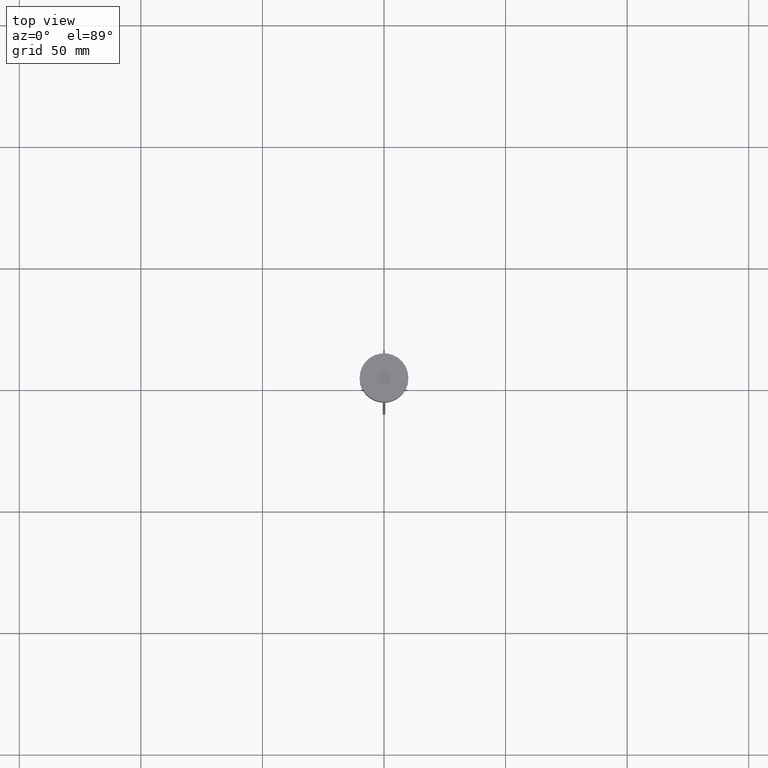
[diagram: clean part render]
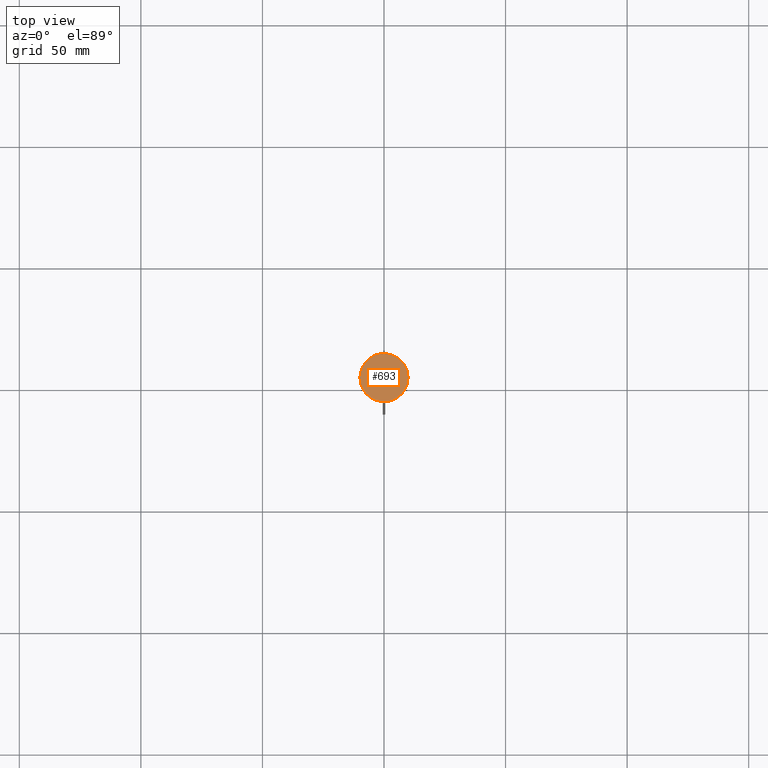
[diagram: same view with one face highlighted and labeled with its STEP entity id]
A machine part, top view. The second image highlights one B-rep face of the part: STEP entity #693.
In plain terms, the highlighted planar face has unit normal (0, -0, 1).
Its self-contained STEP definition (entity closure, byte-faithful):
#50 = CARTESIAN_POINT ( 'NONE',  ( -2.099999999999983213, 1.154700538379251018, 0.000000000000000000 ) ) ;
#54 = VERTEX_POINT ( 'NONE', #103 ) ;
#55 = LINE ( 'NONE', #1474, #2053 ) ;
#69 = EDGE_CURVE ( 'NONE', #1391, #1200, #915, .T. ) ;
#101 = CIRCLE ( 'NONE', #2051, 9.899999999999996803 ) ;
#103 = CARTESIAN_POINT ( 'NONE',  ( -9.899999999999996803, 1.218523565151615986E-15, 0.000000000000000000 ) ) ;
#118 = ORIENTED_EDGE ( 'NONE', *, *, #298, .T. ) ;
#217 = DIRECTION ( 'NONE',  ( 0.000000000000000000, 1.000000000000000000, 0.000000000000000000 ) ) ;
#271 = EDGE_LOOP ( 'NONE', ( #1664, #118 ) ) ;
#298 = EDGE_CURVE ( 'NONE', #54, #1382, #101, .T. ) ;
#357 = VERTEX_POINT ( 'NONE', #824 ) ;
#464 = DIRECTION ( 'NONE',  ( 1.000000000000000000, 0.000000000000000000, 0.000000000000000000 ) ) ;
#465 = PLANE ( 'NONE',  #997 ) ;
#494 = DIRECTION ( 'NONE',  ( 1.000000000000000000, 0.000000000000000000, 0.000000000000000000 ) ) ;
#604 = VECTOR ( 'NONE', #1249, 1000.000000000000000 ) ;
#682 = EDGE_CURVE ( 'NONE', #1930, #1391, #951, .T. ) ;
#693 = ADVANCED_FACE ( 'NONE', ( #783, #1403 ), #465, .T. ) ;
#720 = ORIENTED_EDGE ( 'NONE', *, *, #764, .T. ) ;
#744 = CIRCLE ( 'NONE', #1308, 9.899999999999996803 ) ;
#757 = CARTESIAN_POINT ( 'NONE',  ( 2.049999999999991385, 1.241303078757680645, 0.000000000000000000 ) ) ;
#762 = VERTEX_POINT ( 'NONE', #1488 ) ;
#763 = CARTESIAN_POINT ( 'NONE',  ( -0.04999999999999179406, 2.396003617136931663, 0.000000000000000000 ) ) ;
#764 = EDGE_CURVE ( 'NONE', #1328, #762, #55, .T. ) ;
#783 = FACE_OUTER_BOUND ( 'NONE', #271, .T. ) ;
#824 = CARTESIAN_POINT ( 'NONE',  ( 2.099999999999983213, -1.212435565298204398, 0.000000000000000000 ) ) ;
#872 = VECTOR ( 'NONE', #1044, 1000.000000000000000 ) ;
#915 = LINE ( 'NONE', #757, #1304 ) ;
#927 = DIRECTION ( 'NONE',  ( -0.000000000000000000, -0.000000000000000000, 1.000000000000000000 ) ) ;
#951 = LINE ( 'NONE', #763, #604 ) ;
#997 = AXIS2_PLACEMENT_3D ( 'NONE', #1258, #2048, #1888 ) ;
#998 = EDGE_CURVE ( 'NONE', #1200, #357, #1854, .T. ) ;
#1012 = CARTESIAN_POINT ( 'NONE',  ( 9.899999999999996803, 0.000000000000000000, 0.000000000000000000 ) ) ;
#1035 = EDGE_CURVE ( 'NONE', #1382, #54, #744, .T. ) ;
#1043 = ORIENTED_EDGE ( 'NONE', *, *, #1484, .T. ) ;
#1044 = DIRECTION ( 'NONE',  ( 0.000000000000000000, -1.000000000000000000, 0.000000000000000000 ) ) ;
#1074 = LINE ( 'NONE', #1093, #1485 ) ;
#1093 = CARTESIAN_POINT ( 'NONE',  ( 0.04999999999999210631, -2.396003617136932551, 0.000000000000000000 ) ) ;
#1194 = ORIENTED_EDGE ( 'NONE', *, *, #69, .T. ) ;
#1200 = VERTEX_POINT ( 'NONE', #1473 ) ;
#1249 = DIRECTION ( 'NONE',  ( 0.8660254037844387076, 0.4999999999999998890, 0.000000000000000000 ) ) ;
#1254 = EDGE_LOOP ( 'NONE', ( #1043, #720, #2029, #1604, #1194, #1762 ) ) ;
#1258 = CARTESIAN_POINT ( 'NONE',  ( 0.000000000000000000, 0.000000000000000000, 0.000000000000000000 ) ) ;
#1287 = CARTESIAN_POINT ( 'NONE',  ( 0.000000000000000000, 0.000000000000000000, 0.000000000000000000 ) ) ;
#1304 = VECTOR ( 'NONE', #1529, 1000.000000000000000 ) ;
#1308 = AXIS2_PLACEMENT_3D ( 'NONE', #1556, #927, #464 ) ;
#1328 = VERTEX_POINT ( 'NONE', #2009 ) ;
#1359 = CARTESIAN_POINT ( 'NONE',  ( -2.019064530729228630E-16, 2.424871130596408353, 0.000000000000000000 ) ) ;
#1382 = VERTEX_POINT ( 'NONE', #1012 ) ;
#1391 = VERTEX_POINT ( 'NONE', #1359 ) ;
#1403 = FACE_BOUND ( 'NONE', #1254, .T. ) ;
#1458 = DIRECTION ( 'NONE',  ( -0.8660254037844388186, 0.4999999999999997780, 0.000000000000000000 ) ) ;
#1473 = CARTESIAN_POINT ( 'NONE',  ( 2.099999999999983213, 1.212435565298204176, 0.000000000000000000 ) ) ;
#1474 = CARTESIAN_POINT ( 'NONE',  ( -2.049999999999991385, -1.241303078757681533, 0.000000000000000000 ) ) ;
#1484 = EDGE_CURVE ( 'NONE', #357, #1328, #1074, .T. ) ;
#1485 = VECTOR ( 'NONE', #1740, 999.9999999999998863 ) ;
#1488 = CARTESIAN_POINT ( 'NONE',  ( -2.099999999999983213, -1.212435565298204843, 0.000000000000000000 ) ) ;
#1516 = CARTESIAN_POINT ( 'NONE',  ( 2.099999999999983213, -1.154700538379251684, 0.000000000000000000 ) ) ;
#1529 = DIRECTION ( 'NONE',  ( 0.8660254037844387076, -0.4999999999999998890, 0.000000000000000000 ) ) ;
#1556 = CARTESIAN_POINT ( 'NONE',  ( 0.000000000000000000, 0.000000000000000000, 0.000000000000000000 ) ) ;
#1604 = ORIENTED_EDGE ( 'NONE', *, *, #682, .T. ) ;
#1647 = LINE ( 'NONE', #50, #1956 ) ;
#1664 = ORIENTED_EDGE ( 'NONE', *, *, #1035, .T. ) ;
#1740 = DIRECTION ( 'NONE',  ( -0.8660254037844385966, -0.5000000000000002220, 0.000000000000000000 ) ) ;
#1762 = ORIENTED_EDGE ( 'NONE', *, *, #998, .T. ) ;
#1854 = LINE ( 'NONE', #1516, #872 ) ;
#1858 = EDGE_CURVE ( 'NONE', #762, #1930, #1647, .T. ) ;
#1888 = DIRECTION ( 'NONE',  ( 1.000000000000000000, 0.000000000000000000, 0.000000000000000000 ) ) ;
#1930 = VERTEX_POINT ( 'NONE', #2073 ) ;
#1934 = DIRECTION ( 'NONE',  ( -0.000000000000000000, -0.000000000000000000, 1.000000000000000000 ) ) ;
#1956 = VECTOR ( 'NONE', #217, 1000.000000000000000 ) ;
#2009 = CARTESIAN_POINT ( 'NONE',  ( 4.687517206659946955E-16, -2.424871130596408797, 0.000000000000000000 ) ) ;
#2029 = ORIENTED_EDGE ( 'NONE', *, *, #1858, .T. ) ;
#2048 = DIRECTION ( 'NONE',  ( 0.000000000000000000, -0.000000000000000000, 1.000000000000000000 ) ) ;
#2051 = AXIS2_PLACEMENT_3D ( 'NONE', #1287, #1934, #494 ) ;
#2053 = VECTOR ( 'NONE', #1458, 1000.000000000000114 ) ;
#2073 = CARTESIAN_POINT ( 'NONE',  ( -2.099999999999983213, 1.212435565298204176, 0.000000000000000000 ) ) ;